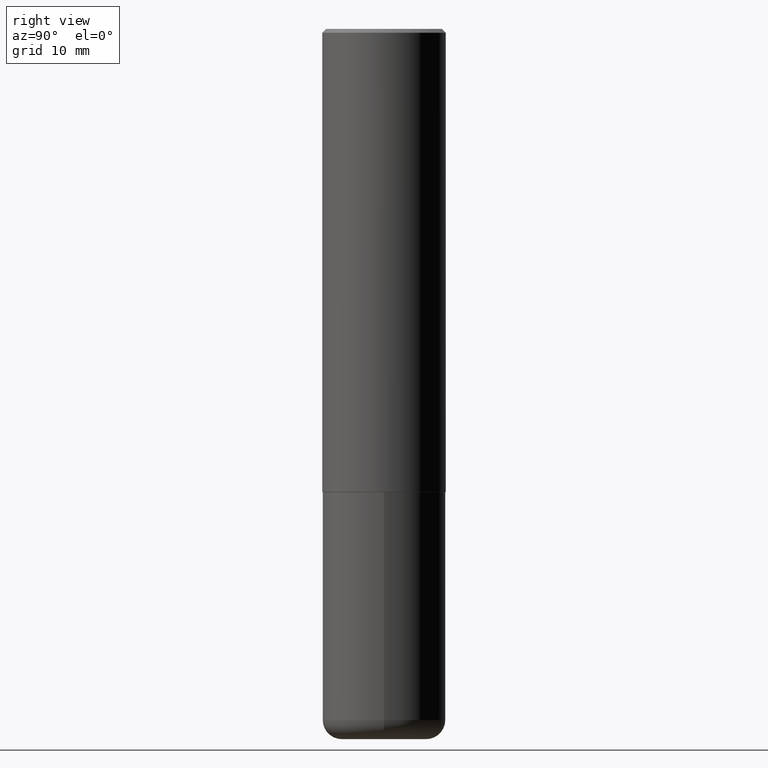
[diagram: clean part render]
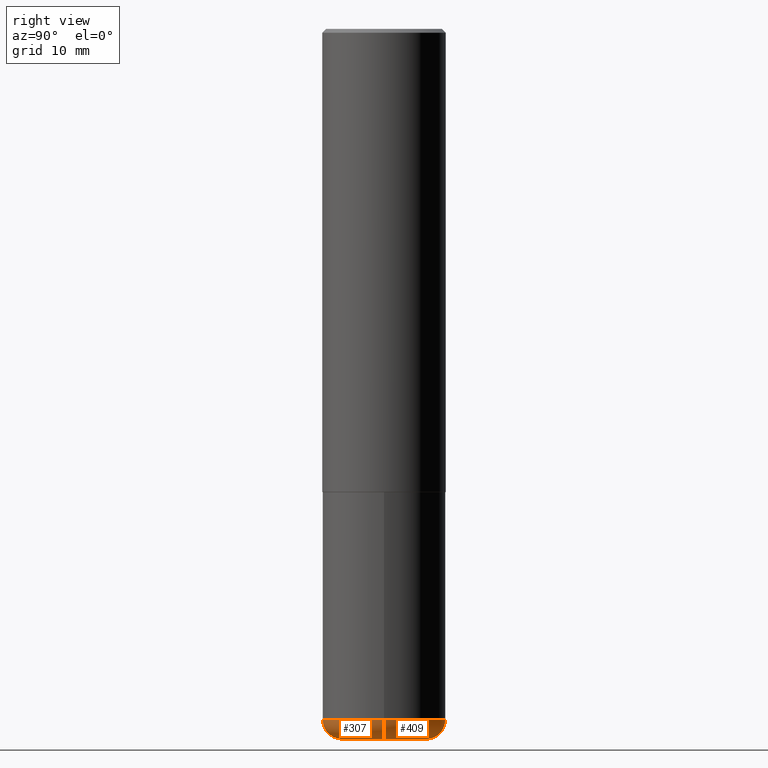
[diagram: same view with one multi-face feature highlighted, each face labeled with its STEP entity id]
A machine part, right view. The highlighted faces form ONE feature: a constant-radius fillet chain: 2 tangent blend faces with common blend radius 2.4994 mm. The faces share edges in the B-rep.
Their STEP definitions:
[1] entity #307 (Torus):
#5 = VERTEX_POINT ( 'NONE', #66 ) ;
#10 = DIRECTION ( 'NONE',  ( -2.445468806185136597E-29, 3.491481338843145583E-15, 1.000000000000000000 ) ) ;
#12 = CARTESIAN_POINT ( 'NONE',  ( 8.616853885473946211E-29, -1.230258364554770589E-14, -3.523599999999999621 ) ) ;
#13 = DIRECTION ( 'NONE',  ( 1.000000000000000000, -6.982962677686269866E-15, 0.000000000000000000 ) ) ;
#21 = TOROIDAL_SURFACE ( 'NONE', #293, 0.2165500000000000203, 0.09839999999999984870 ) ;
#41 = CARTESIAN_POINT ( 'NONE',  ( 0.2165500000000000203, -1.415830597714283123E-14, -3.621999999999999442 ) ) ;
#50 = DIRECTION ( 'NONE',  ( -6.982962677686266711E-15, -1.000000000000000000, 3.491481338843145583E-15 ) ) ;
#51 = EDGE_CURVE ( 'NONE', #260, #91, #61, .T. ) ;
#59 = VERTEX_POINT ( 'NONE', #41 ) ;
#61 = CIRCLE ( 'NONE', #272, 0.3149500000000000077 ) ;
#62 = CARTESIAN_POINT ( 'NONE',  ( -0.2165500000000000203, -1.076390335125921037E-14, -3.523599999999999621 ) ) ;
#64 = ORIENTED_EDGE ( 'NONE', *, *, #372, .T. ) ;
#66 = CARTESIAN_POINT ( 'NONE',  ( -0.2165500000000000203, -1.058609720713632398E-14, -3.621999999999999442 ) ) ;
#91 = VERTEX_POINT ( 'NONE', #221 ) ;
#104 = CIRCLE ( 'NONE', #360, 0.2165500000000000203 ) ;
#114 = ORIENTED_EDGE ( 'NONE', *, *, #223, .T. ) ;
#143 = DIRECTION ( 'NONE',  ( -2.445468806185136597E-29, 3.491481338843145583E-15, 1.000000000000000000 ) ) ;
#164 = DIRECTION ( 'NONE',  ( 1.000000000000000000, -6.982962677686271444E-15, 0.000000000000000000 ) ) ;
#171 = CARTESIAN_POINT ( 'NONE',  ( 0.2165500000000000203, -1.381474421340066671E-14, -3.523599999999999621 ) ) ;
#178 = CIRCLE ( 'NONE', #380, 0.09839999999999986258 ) ;
#179 = EDGE_LOOP ( 'NONE', ( #252, #64, #114, #393 ) ) ;
#213 = CARTESIAN_POINT ( 'NONE',  ( 8.616853885473946211E-29, -1.230258364554770589E-14, -3.523599999999999621 ) ) ;
#221 = CARTESIAN_POINT ( 'NONE',  ( 0.3149499999999999522, -1.450186774088499734E-14, -3.523599999999999621 ) ) ;
#223 = EDGE_CURVE ( 'NONE', #59, #91, #178, .T. ) ;
#246 = DIRECTION ( 'NONE',  ( 1.000000000000000000, -6.982962677686266711E-15, 4.883557194083112901E-29 ) ) ;
#252 = ORIENTED_EDGE ( 'NONE', *, *, #317, .F. ) ;
#260 = VERTEX_POINT ( 'NONE', #341 ) ;
#272 = AXIS2_PLACEMENT_3D ( 'NONE', #12, #10, #13 ) ;
#277 = DIRECTION ( 'NONE',  ( 1.000000000000000000, -6.982962677686264344E-15, 0.000000000000000000 ) ) ;
#293 = AXIS2_PLACEMENT_3D ( 'NONE', #213, #348, #246 ) ;
#307 = ADVANCED_FACE ( 'NONE', ( #377 ), #21, .T. ) ;
#310 = CIRCLE ( 'NONE', #404, 0.09839999999999986258 ) ;
#317 = EDGE_CURVE ( 'NONE', #5, #260, #310, .T. ) ;
#319 = DIRECTION ( 'NONE',  ( 7.105427357601001859E-15, 1.000000000000000000, -3.491481338843145583E-15 ) ) ;
#337 = CARTESIAN_POINT ( 'NONE',  ( 8.857488016002563354E-29, -1.264614540928987041E-14, -3.621999999999999442 ) ) ;
#341 = CARTESIAN_POINT ( 'NONE',  ( -0.3149499999999999522, -1.006472929927126990E-14, -3.523599999999999621 ) ) ;
#348 = DIRECTION ( 'NONE',  ( -2.445468806185136597E-29, 3.491481338843145583E-15, 1.000000000000000000 ) ) ;
#360 = AXIS2_PLACEMENT_3D ( 'NONE', #337, #143, #277 ) ;
#372 = EDGE_CURVE ( 'NONE', #5, #59, #104, .T. ) ;
#374 = DIRECTION ( 'NONE',  ( -1.000000000000000000, 7.105427357601009747E-15, 0.000000000000000000 ) ) ;
#377 = FACE_OUTER_BOUND ( 'NONE', #179, .T. ) ;
#380 = AXIS2_PLACEMENT_3D ( 'NONE', #171, #50, #164 ) ;
#393 = ORIENTED_EDGE ( 'NONE', *, *, #51, .F. ) ;
#404 = AXIS2_PLACEMENT_3D ( 'NONE', #62, #319, #374 ) ;
[2] entity #409 (Torus):
#5 = VERTEX_POINT ( 'NONE', #66 ) ;
#15 = AXIS2_PLACEMENT_3D ( 'NONE', #338, #45, #332 ) ;
#41 = CARTESIAN_POINT ( 'NONE',  ( 0.2165500000000000203, -1.415830597714283123E-14, -3.621999999999999442 ) ) ;
#45 = DIRECTION ( 'NONE',  ( -2.445468806185136597E-29, 3.491481338843145583E-15, 1.000000000000000000 ) ) ;
#50 = DIRECTION ( 'NONE',  ( -6.982962677686266711E-15, -1.000000000000000000, 3.491481338843145583E-15 ) ) ;
#53 = DIRECTION ( 'NONE',  ( 1.000000000000000000, -6.982962677686269866E-15, 0.000000000000000000 ) ) ;
#57 = DIRECTION ( 'NONE',  ( 1.000000000000000000, -6.982962677686266711E-15, 4.883557194083112901E-29 ) ) ;
#58 = FACE_OUTER_BOUND ( 'NONE', #126, .T. ) ;
#59 = VERTEX_POINT ( 'NONE', #41 ) ;
#62 = CARTESIAN_POINT ( 'NONE',  ( -0.2165500000000000203, -1.076390335125921037E-14, -3.523599999999999621 ) ) ;
#66 = CARTESIAN_POINT ( 'NONE',  ( -0.2165500000000000203, -1.058609720713632398E-14, -3.621999999999999442 ) ) ;
#67 = AXIS2_PLACEMENT_3D ( 'NONE', #340, #108, #53 ) ;
#91 = VERTEX_POINT ( 'NONE', #221 ) ;
#108 = DIRECTION ( 'NONE',  ( -2.445468806185136597E-29, 3.491481338843145583E-15, 1.000000000000000000 ) ) ;
#117 = ORIENTED_EDGE ( 'NONE', *, *, #317, .T. ) ;
#126 = EDGE_LOOP ( 'NONE', ( #173, #117, #288, #148 ) ) ;
#148 = ORIENTED_EDGE ( 'NONE', *, *, #223, .F. ) ;
#154 = CIRCLE ( 'NONE', #15, 0.2165500000000000203 ) ;
#164 = DIRECTION ( 'NONE',  ( 1.000000000000000000, -6.982962677686271444E-15, 0.000000000000000000 ) ) ;
#171 = CARTESIAN_POINT ( 'NONE',  ( 0.2165500000000000203, -1.381474421340066671E-14, -3.523599999999999621 ) ) ;
#173 = ORIENTED_EDGE ( 'NONE', *, *, #182, .T. ) ;
#178 = CIRCLE ( 'NONE', #380, 0.09839999999999986258 ) ;
#182 = EDGE_CURVE ( 'NONE', #59, #5, #154, .T. ) ;
#210 = DIRECTION ( 'NONE',  ( -2.445468806185136597E-29, 3.491481338843145583E-15, 1.000000000000000000 ) ) ;
#220 = EDGE_CURVE ( 'NONE', #91, #260, #368, .T. ) ;
#221 = CARTESIAN_POINT ( 'NONE',  ( 0.3149499999999999522, -1.450186774088499734E-14, -3.523599999999999621 ) ) ;
#223 = EDGE_CURVE ( 'NONE', #59, #91, #178, .T. ) ;
#247 = CARTESIAN_POINT ( 'NONE',  ( 8.616853885473946211E-29, -1.230258364554770589E-14, -3.523599999999999621 ) ) ;
#257 = TOROIDAL_SURFACE ( 'NONE', #376, 0.2165500000000000203, 0.09839999999999984870 ) ;
#260 = VERTEX_POINT ( 'NONE', #341 ) ;
#288 = ORIENTED_EDGE ( 'NONE', *, *, #220, .F. ) ;
#310 = CIRCLE ( 'NONE', #404, 0.09839999999999986258 ) ;
#317 = EDGE_CURVE ( 'NONE', #5, #260, #310, .T. ) ;
#319 = DIRECTION ( 'NONE',  ( 7.105427357601001859E-15, 1.000000000000000000, -3.491481338843145583E-15 ) ) ;
#332 = DIRECTION ( 'NONE',  ( 1.000000000000000000, -6.982962677686264344E-15, 0.000000000000000000 ) ) ;
#338 = CARTESIAN_POINT ( 'NONE',  ( 8.857488016002563354E-29, -1.264614540928987041E-14, -3.621999999999999442 ) ) ;
#340 = CARTESIAN_POINT ( 'NONE',  ( 8.616853885473946211E-29, -1.230258364554770589E-14, -3.523599999999999621 ) ) ;
#341 = CARTESIAN_POINT ( 'NONE',  ( -0.3149499999999999522, -1.006472929927126990E-14, -3.523599999999999621 ) ) ;
#368 = CIRCLE ( 'NONE', #67, 0.3149500000000000077 ) ;
#374 = DIRECTION ( 'NONE',  ( -1.000000000000000000, 7.105427357601009747E-15, 0.000000000000000000 ) ) ;
#376 = AXIS2_PLACEMENT_3D ( 'NONE', #247, #210, #57 ) ;
#380 = AXIS2_PLACEMENT_3D ( 'NONE', #171, #50, #164 ) ;
#404 = AXIS2_PLACEMENT_3D ( 'NONE', #62, #319, #374 ) ;
#409 = ADVANCED_FACE ( 'NONE', ( #58 ), #257, .T. ) ;